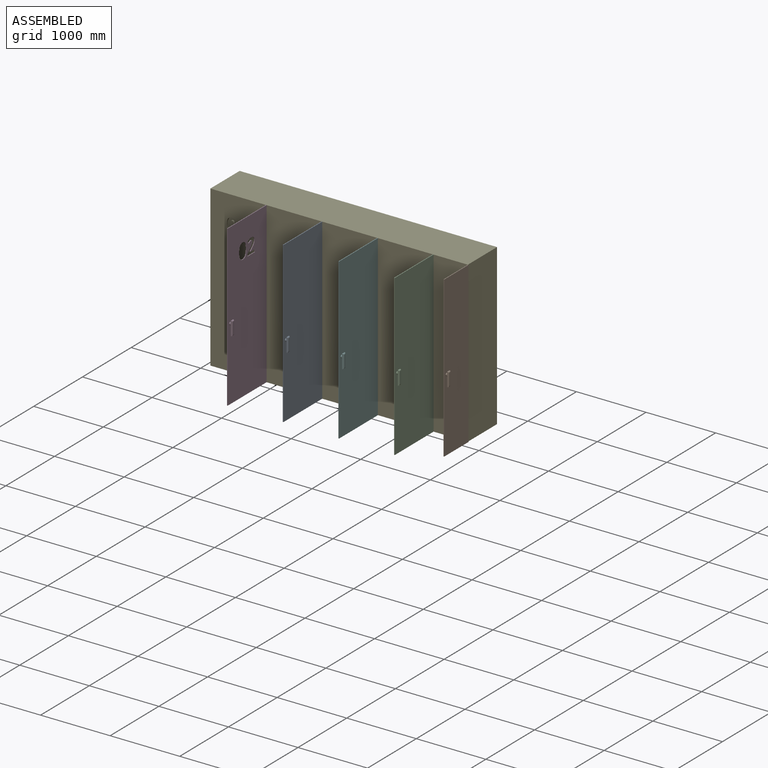
[diagram: assembled view]
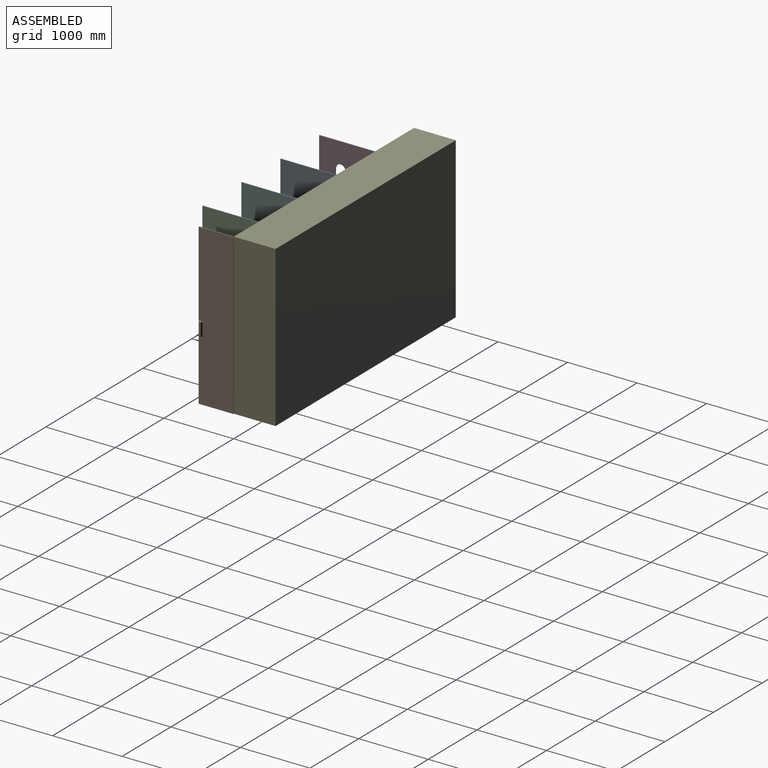
[diagram: assembled view, second angle]
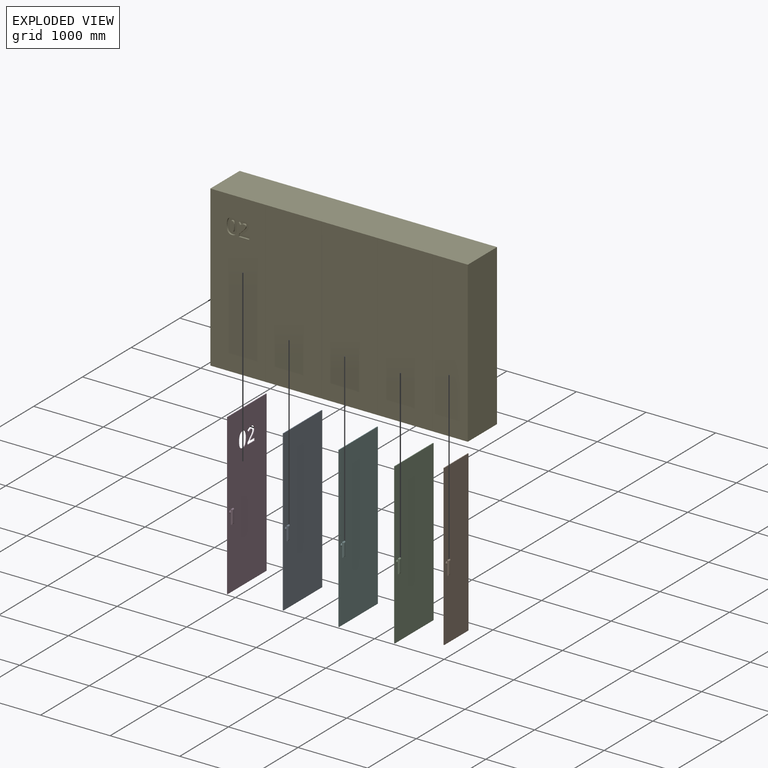
[diagram: exploded view]
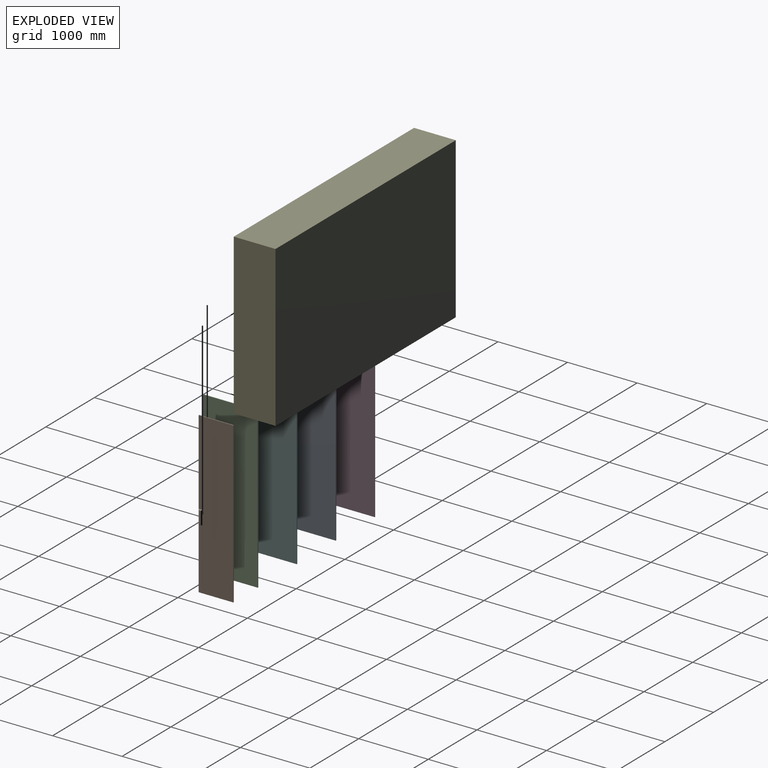
[diagram: exploded view, second angle]
ASSEMBLY  parts=6 mates=5
PART A: 17 faces, bbox 796x55x2300 mm
  f0: cylinder r=20mm len=40mm, axis (0,1,0), area 3141.6mm2, adj f6,f15
  f1: plane 50x5mm, normal (0,0,-1), area 250mm2, adj f2,f4,f6,f7
  f2: plane 200x5mm, normal (1,0,0), area 1000mm2, adj f1,f3,f6,f8
  f3: plane 50x5mm, normal (0,0,1), area 250mm2, adj f2,f4,f6,f10
  f4: plane 200x5mm, normal (-1,0,0), area 1000mm2, adj f1,f3,f6,f9
  f5: plane 170x20mm, normal (0,-1,0), area 3400mm2, adj f7,f8,f9,f10
  f6: plane 200x50mm, normal (0,1,0), area 8743.4mm2, adj f0,f1,f2,f3,f4
  f7: cylinder r=15mm len=50mm, axis (-1,0,0), area 921.2mm2, adj f1,f5,f8,f9
  f8: cylinder r=15mm len=200mm, axis (0,0,-1), area 4455.5mm2, adj f2,f5,f7,f10
  f9: cylinder r=15mm len=200mm, axis (0,0,1), area 4455.5mm2, adj f4,f5,f7,f10
  f10: cylinder r=15mm len=50mm, axis (1,0,0), area 921.2mm2, adj f3,f5,f8,f9
  f11: plane 796x10mm, normal (0,0,1), area 7960mm2, adj f12,f14,f15,f16
  f12: plane 2300x10mm, normal (-1,0,0), area 23000mm2, adj f11,f13,f15,f16
  f13: plane 796x10mm, normal (0,0,-1), area 7960mm2, adj f12,f14,f15,f16
  f14: plane 2300x10mm, normal (1,0,0), area 23000mm2, adj f11,f13,f15,f16
  f15: plane 2300x796mm, normal (0,-1,0), area 1829543.4mm2, adj f0,f11,f12,f13,f14
  f16: plane 2300x796mm, normal (0,1,0), area 1830800mm2, adj f11,f12,f13,f14
PART B: 17 faces, bbox 498x55x2300 mm
  f0: plane 498x10mm, normal (0,0,1), area 4980mm2, adj f1,f3,f4,f5
  f1: plane 2300x10mm, normal (-1,0,0), area 23000mm2, adj f0,f2,f4,f5
  f2: plane 498x10mm, normal (0,0,-1), area 4980mm2, adj f1,f3,f4,f5
  f3: plane 2300x10mm, normal (1,0,0), area 23000mm2, adj f0,f2,f4,f5
  f4: plane 2300x498mm, normal (0,-1,0), area 1144143.4mm2, adj f0,f1,f2,f3,f6
  f5: plane 2300x498mm, normal (0,1,0), area 1145400mm2, adj f0,f1,f2,f3
  f6: cylinder r=20mm len=40mm, axis (0,1,0), area 3141.6mm2, adj f4,f12
  f7: plane 50x5mm, normal (0,0,-1), area 250mm2, adj f8,f10,f12,f13
  f8: plane 200x5mm, normal (1,0,0), area 1000mm2, adj f7,f9,f12,f14
  f9: plane 50x5mm, normal (0,0,1), area 250mm2, adj f8,f10,f12,f16
  f10: plane 200x5mm, normal (-1,0,0), area 1000mm2, adj f7,f9,f12,f15
  f11: plane 170x20mm, normal (0,-1,0), area 3400mm2, adj f13,f14,f15,f16
  f12: plane 200x50mm, normal (0,1,0), area 8743.4mm2, adj f6,f7,f8,f9,f10
  f13: cylinder r=15mm len=50mm, axis (-1,0,0), area 921.2mm2, adj f7,f11,f14,f15
  f14: cylinder r=15mm len=200mm, axis (0,0,-1), area 4455.5mm2, adj f8,f11,f13,f16
  f15: cylinder r=15mm len=200mm, axis (0,0,1), area 4455.5mm2, adj f10,f11,f13,f16
  f16: cylinder r=15mm len=50mm, axis (1,0,0), area 921.2mm2, adj f9,f11,f14,f15
PART C: same geometry as A
PART D: 49 faces, bbox 798x55x2300 mm
  f0: cylinder r=20mm len=40mm, axis (0,1,0), area 3141.6mm2, adj f6,f47
  f1: plane 200x5mm, normal (1,0,0), area 1000mm2, adj f2,f4,f6,f7
  f2: plane 50x5mm, normal (0,0,1), area 250mm2, adj f1,f3,f6,f8
  f3: plane 200x5mm, normal (-1,0,0), area 1000mm2, adj f2,f4,f6,f10
  f4: plane 50x5mm, normal (0,0,-1), area 250mm2, adj f1,f3,f6,f9
  f5: plane 170x20mm, normal (0,-1,0), area 3400mm2, adj f7,f8,f9,f10
  f6: plane 200x50mm, normal (0,1,0), area 8743.4mm2, adj f0,f1,f2,f3,f4
  f7: cylinder r=15mm len=200mm, axis (0,0,-1), area 4455.5mm2, adj f1,f5,f8,f9
  f8: cylinder r=15mm len=50mm, axis (1,0,0), area 921.2mm2, adj f2,f5,f7,f10
  f9: cylinder r=15mm len=50mm, axis (-1,0,0), area 921.2mm2, adj f4,f5,f7,f10
  f10: cylinder r=15mm len=200mm, axis (0,0,1), area 4455.5mm2, adj f3,f5,f8,f9
  f11: plane 38.38x10mm, normal (-1,0,0), area 383.8mm2, adj f12,f46,f47,f48
  f12: plane 150.78x10mm, normal (0,0,1), area 1507.8mm2, adj f11,f13,f47,f48
  f13: plane 31.72x10mm, normal (1,0,0), area 317.2mm2, adj f12,f14,f47,f48
  f14: plane 54.71x54.15mm, normal (0.71,0,-0.7), area 769.8mm2, adj f13,f15,f47,f48
  f15: extruded ~34.15x31.44mm, area 464.4mm2, adj f14,f16,f47,f48
  f16: extruded ~17.63x10.62mm, area 206.5mm2, adj f15,f17,f47,f48
  f17: extruded ~16.81x10mm, area 172.2mm2, adj f16,f18,f47,f48
  f18: extruded ~19.33x10mm, area 212.7mm2, adj f17,f19,f47,f48
  f19: extruded ~19.12x10mm, area 206.1mm2, adj f18,f20,f47,f48
  f20: extruded ~24.31x10mm, area 252mm2, adj f19,f21,f47,f48
  f21: extruded ~24.64x16.38mm, area 296.6mm2, adj f20,f22,f47,f48
  f22: plane 29.36x24.78mm, normal (0.76,0,0.65), area 384.2mm2, adj f21,f23,f47,f48
  f23: extruded ~26.39x19.19mm, area 326.9mm2, adj f22,f24,f47,f48
  f24: extruded ~22.87x10mm, area 245.1mm2, adj f23,f25,f47,f48
  f25: extruded ~27.73x10mm, area 279.6mm2, adj f24,f26,f47,f48
  f26: extruded ~35.69x10mm, area 367.4mm2, adj f25,f27,f47,f48
  f27: extruded ~24.05x20.65mm, area 321.2mm2, adj f26,f28,f47,f48
  f28: extruded ~30.38x10mm, area 320.1mm2, adj f27,f29,f47,f48
  f29: extruded ~27.97x10mm, area 286.3mm2, adj f28,f30,f47,f48
  f30: extruded ~26.77x16.24mm, area 314.2mm2, adj f29,f31,f47,f48
  f31: extruded ~39.11x38.71mm, area 550.7mm2, adj f30,f32,f47,f48
  f32: plane 27.76x26.11mm, normal (-0.69,0,0.73), area 381.1mm2, adj f31,f33,f47,f48
  f33: plane 10x2.03mm, normal (-1,0,0), area 20.3mm2, adj f32,f46,f47,f48
  f34: extruded ~82.94x19.1mm, area 863.2mm2, adj f35,f44,f47,f48
  f35: extruded ~83.63x18.51mm, area 868.5mm2, adj f34,f36,f47,f48
  f36: extruded ~57.03x27.17mm, area 659.7mm2, adj f35,f37,f47,f48
  f37: extruded ~56.29x28.04mm, area 657.2mm2, adj f36,f38,f47,f48
  f38: extruded ~82.75x18.95mm, area 861mm2, adj f37,f39,f47,f48
  f39: extruded ~84.19x18.46mm, area 874mm2, adj f38,f40,f47,f48
  f40: extruded ~56.79x27.07mm, area 657mm2, adj f39,f44,f47,f48
  f41: plane 2300x10mm, normal (1,0,0), area 23000mm2, adj f42,f45,f47,f48
  f42: plane 798x10mm, normal (0,0,1), area 7980mm2, adj f41,f43,f47,f48
  f43: plane 2300x10mm, normal (-1,0,0), area 23000mm2, adj f42,f45,f47,f48
  f44: extruded ~56.44x28.32mm, area 660mm2, adj f34,f40,f47,f48
  f45: plane 798x10mm, normal (0,0,-1), area 7980mm2, adj f41,f43,f47,f48
  f46: plane 93.99x10mm, normal (0,0,-1), area 939.9mm2, adj f11,f33,f47,f48
  f47: plane 2300x798mm, normal (0,-1,0), area 1788877.7mm2, adj f0,f11,f12,f13,f14,f15,f16,f17
  f48: plane 2300x798mm, normal (0,1,0), area 1790134.3mm2, adj f11,f12,f13,f14,f15,f16,f17,f18
PART E: 65 faces, bbox 3700x600x2300 mm
  f0: plane 2300x798mm, normal (0,-1,0), area 1790134.3mm2, adj f1,f2,f7,f21,f29,f30,f31,f32
  f1: plane 3700x600mm, normal (0,0,-1), area 2219968mm2, adj f0,f3,f4,f5,f6,f7,f8,f9
  f2: plane 3700x600mm, normal (0,0,1), area 2219968mm2, adj f0,f3,f4,f5,f6,f7,f8,f9
  f3: plane 2300x796mm, normal (0,-1,0), area 1830800mm2, adj f1,f2,f18,f20
  f4: plane 2300x796mm, normal (0,-1,0), area 1830800mm2, adj f1,f2,f15,f17
  f5: plane 2300x796mm, normal (0,-1,0), area 1830800mm2, adj f1,f2,f12,f14
  f6: plane 2300x498mm, normal (0,-1,0), area 1145400mm2, adj f1,f2,f8,f11
  f7: plane 2300x600mm, normal (-1,0,0), area 1380000mm2, adj f0,f1,f2,f9
  f8: plane 2300x600mm, normal (1,0,0), area 1380000mm2, adj f1,f2,f6,f9
  f9: plane 3700x2300mm, normal (0,1,0), area 8510000mm2, adj f1,f2,f7,f8
  f10: plane 2300x4mm, normal (0,-1,0), area 9200mm2, adj f1,f2,f11,f12
  f11: plane 2300x2mm, normal (-1,0,0), area 4600mm2, adj f1,f2,f6,f10
  f12: plane 2300x2mm, normal (1,0,0), area 4600mm2, adj f1,f2,f5,f10
  f13: plane 2300x4mm, normal (0,-1,0), area 9200mm2, adj f1,f2,f14,f15
  f14: plane 2300x2mm, normal (-1,0,0), area 4600mm2, adj f1,f2,f5,f13
  f15: plane 2300x2mm, normal (1,0,0), area 4600mm2, adj f1,f2,f4,f13
  f16: plane 2300x4mm, normal (0,-1,0), area 9200mm2, adj f1,f2,f17,f18
  f17: plane 2300x2mm, normal (-1,0,0), area 4600mm2, adj f1,f2,f4,f16
  f18: plane 2300x2mm, normal (1,0,0), area 4600mm2, adj f1,f2,f3,f16
  f19: plane 2300x4mm, normal (0,-1,0), area 9200mm2, adj f1,f2,f20,f21
  f20: plane 2300x2mm, normal (-1,0,0), area 4600mm2, adj f1,f2,f3,f19
  f21: plane 2300x2mm, normal (1,0,0), area 4600mm2, adj f0,f1,f2,f19
  f22: extruded ~56.84x25mm, area 1438.3mm2, adj f23,f37,f38,f64
  f23: extruded ~57.03x25mm, area 1443.3mm2, adj f22,f24,f38,f64
  f24: extruded ~25x23.01mm, area 771.4mm2, adj f23,f25,f38,f64
  f25: extruded ~25x22.94mm, area 768.4mm2, adj f24,f26,f38,f64
  f26: extruded ~57.03x25mm, area 1444.6mm2, adj f25,f27,f38,f64
  f27: extruded ~56.63x25mm, area 1434.1mm2, adj f26,f28,f38,f64
  f28: extruded ~25x23.04mm, area 772.3mm2, adj f27,f37,f38,f64
  f29: extruded ~83.63x25mm, area 2171.3mm2, adj f0,f30,f36,f38
  f30: extruded ~82.94x25mm, area 2157.9mm2, adj f0,f29,f31,f38
  f31: extruded ~56.44x28.32mm, area 1649.9mm2, adj f0,f30,f32,f38
  f32: extruded ~56.79x27.07mm, area 1642.5mm2, adj f0,f31,f33,f38
  f33: extruded ~84.19x25mm, area 2184.9mm2, adj f0,f32,f34,f38
  f34: extruded ~82.75x25mm, area 2152.5mm2, adj f0,f33,f35,f38
  f35: extruded ~56.29x28.04mm, area 1643.1mm2, adj f0,f34,f36,f38
  f36: extruded ~57.03x27.17mm, area 1649.2mm2, adj f0,f29,f35,f38
  f37: extruded ~25x23.08mm, area 770.9mm2, adj f22,f28,f38,f64
  f38: plane 222.06x150.78mm, normal (0,-1,0), area 20368.3mm2, adj f22,f23,f24,f25,f26,f27,f28,f29
  f39: plane 150.78x25mm, normal (0,0,1), area 3769.5mm2, adj f0,f40,f62,f63
  f40: plane 38.38x25mm, normal (-1,0,0), area 959.5mm2, adj f0,f39,f41,f63
  f41: plane 93.99x25mm, normal (0,0,-1), area 2349.7mm2, adj f0,f40,f42,f63
  f42: plane 25x2.03mm, normal (-1,0,0), area 50.7mm2, adj f0,f41,f43,f63
  f43: plane 27.76x26.11mm, normal (-0.69,0,0.73), area 952.6mm2, adj f0,f42,f44,f63
  f44: extruded ~39.11x38.71mm, area 1376.8mm2, adj f0,f43,f45,f63
  f45: extruded ~26.77x25mm, area 785.5mm2, adj f0,f44,f46,f63
  f46: extruded ~27.97x25mm, area 715.8mm2, adj f0,f45,f47,f63
  f47: extruded ~30.38x25mm, area 800.3mm2, adj f0,f46,f48,f63
  f48: extruded ~25x24.05mm, area 803.1mm2, adj f0,f47,f49,f63
  f49: extruded ~35.69x25mm, area 918.6mm2, adj f0,f48,f50,f63
  f50: extruded ~27.73x25mm, area 699.1mm2, adj f0,f49,f51,f63
  f51: extruded ~25x22.87mm, area 612.6mm2, adj f0,f50,f52,f63
  f52: extruded ~26.39x25mm, area 817.1mm2, adj f0,f51,f53,f63
  f53: plane 29.36x25mm, normal (0.76,0,0.65), area 960.6mm2, adj f0,f52,f54,f63
  f54: extruded ~25x24.64mm, area 741.5mm2, adj f0,f53,f55,f63
  f55: extruded ~25x24.31mm, area 630.1mm2, adj f0,f54,f56,f63
  f56: extruded ~25x19.12mm, area 515.2mm2, adj f0,f55,f57,f63
  f57: extruded ~25x19.33mm, area 531.8mm2, adj f0,f56,f58,f63
  f58: extruded ~25x16.81mm, area 430.6mm2, adj f0,f57,f59,f63
  f59: extruded ~25x17.63mm, area 516.2mm2, adj f0,f58,f60,f63
  f60: extruded ~34.15x31.44mm, area 1161mm2, adj f0,f59,f61,f63
  f61: plane 54.71x54.15mm, normal (0.71,0,-0.7), area 1924.4mm2, adj f0,f60,f62,f63
  f62: plane 31.72x25mm, normal (1,0,0), area 793.1mm2, adj f0,f39,f61,f63
  f63: plane 218.76x151.35mm, normal (0,-1,0), area 17327.4mm2, adj f39,f40,f41,f42,f43,f44,f45,f46
  f64: plane 148.37x60.05mm, normal (0,-1,0), area 7570mm2, adj f22,f23,f24,f25,f26,f27,f28,f37
PART F: same geometry as A
PLACE A rot(axis=(0,0,1),90deg) t=(-852,-1898,0)mm
PLACE B rot(axis=(0,0,1),90deg) t=(1250,-4000,0)mm
PLACE C rot(axis=(0,0,1),90deg) t=(748,-1898,0)mm
PLACE D rot(axis=(0,0,1),90deg) t=(-1652,-1098,0)mm
PLACE E t=(-1850,300,0)mm
PLACE F rot(axis=(0,0,1),90deg) t=(-52,-1898,0)mm
MATE revolute C.f11 <-> E.f2  axis (0,0,-1) through (1348,-300,2300)mm
MATE revolute E.f2 <-> D.f42  axis (0,0,-1) through (-1052,-300,2300)mm
MATE revolute F.f11 <-> E.f2  axis (0,0,-1) through (548,-300,2300)mm
MATE revolute A.f11 <-> E.f2  axis (0,0,-1) through (-252,-300,2300)mm
MATE revolute E.f2 <-> B.f0  axis (0,0,1) through (1850,-300,2300)mm
